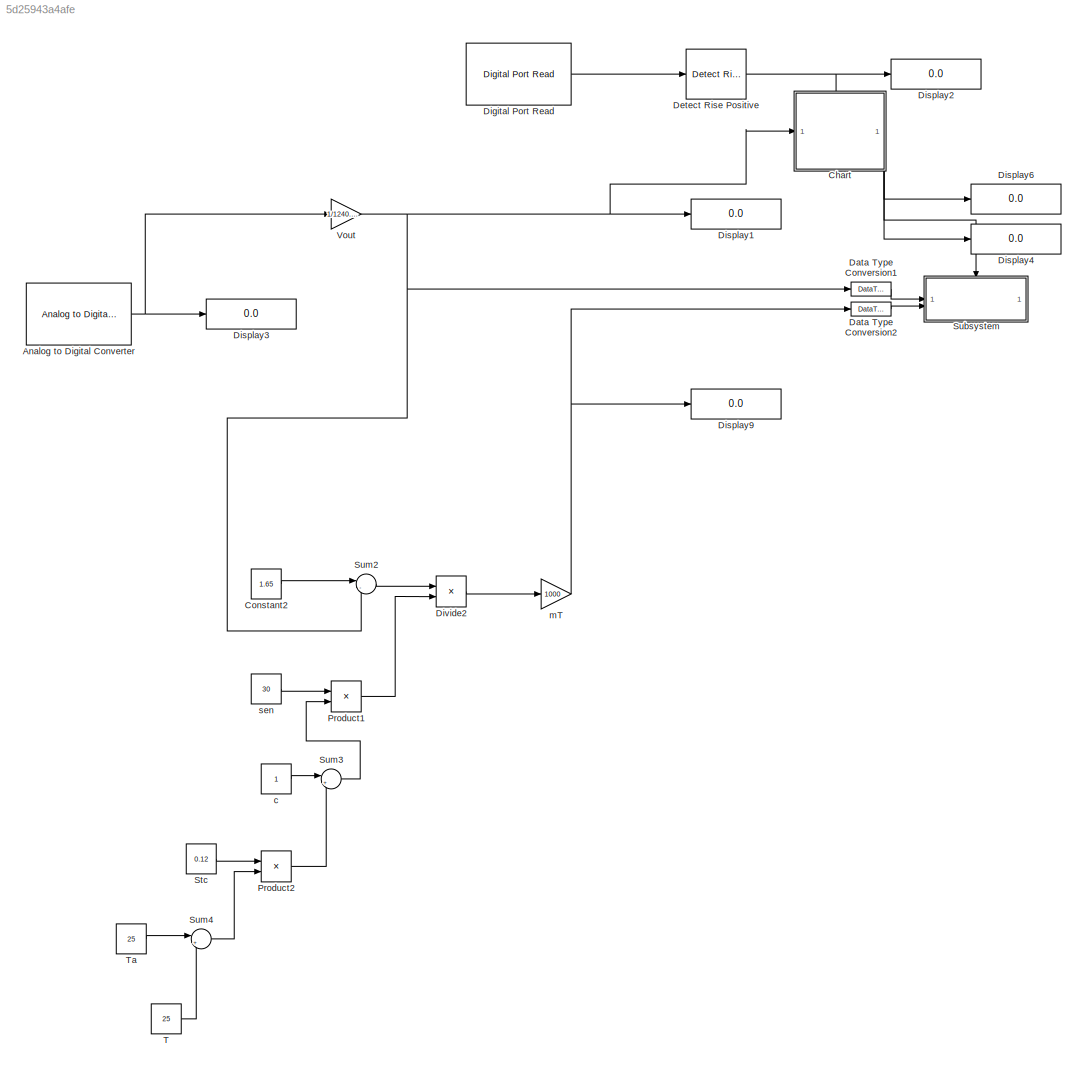
MODEL slx_5d25943a4afe
KIND model
CONFIG AbsTol = auto
CONFIG EnableMultiTasking = on
CONFIG FixedStep = 0.001
CONFIG MaxStep = auto
CONFIG MinStep = auto
CONFIG RelTol = 1e-3
CONFIG SampleTimeConstraint = Unconstrained
CONFIG SolverName = FixedStepAuto
CONFIG StartTime = 0.0
CONFIG StopTime = inf
BLOCK [Reference] Analog to Digital Converter  REF=stm32f4xxblockslib/Analog to Digital Converter
  LibrarySourceBlock = stm32g4xxblockslib/Analog to Digital Converter
  SourceBlock = stm32f4xxblockslib/Analog to Digital Converter
  SourceType = stm32cube.blocks.AnalogInput
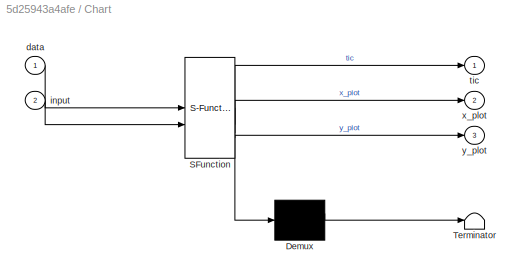
BLOCK [SubSystem] Chart
  ErrorFcn = Stateflow.Translate.translate
  PermitHierarchicalResolution = ExplicitOnly
  PortSchema = {"entries":[{"content":{"sides":[{"content":{"connectorIds":["In1"]},"type":"ConnectorPlacement.EquallySpacedRectSide","uuid":"15421bba-938f-45a9-ad39-0fb1dc31f746"},{"content":{"side":"RIGHT"},"type":"ConnectorPlacement.EquallySpacedRectSide","uuid":"6df644a9-cb47-4d86-919b-b55e97b0d3b9"},{"content":{"connectorIds":["In2"],"side":"TOP"},"type":"ConnectorPlacement.EquallySpacedRectSide","uuid":"9f...<+385ch>
  SFBlockType = Chart
  TreatAsAtomicUnit = on
BLOCK [Demux] Chart/ Demux 
  Outputs = 1
BLOCK [S-Function] Chart/ SFunction 
  EnableBusSupport = on
  FunctionName = sf_sfun
  PortCounts = [2 4]
  SFcnIsStateOwnerBlock = off
  SFunctionDeploymentMode = off
  Tag = Stateflow S-Function 3
BLOCK [Terminator] Chart/ Terminator 
BLOCK [Inport] Chart/data
BLOCK [Inport] Chart/input
  Port = 2
BLOCK [Outport] Chart/tic
BLOCK [Outport] Chart/x_plot
  Port = 2
BLOCK [Outport] Chart/y_plot
  Port = 3
BLOCK [Constant] Constant2
  Value = 1.65
BLOCK [DataTypeConversion] Data Type Conversion1
  OutDataTypeStr = double
  RndMeth = Floor
  SaturateOnIntegerOverflow = off
BLOCK [DataTypeConversion] Data Type Conversion2
  OutDataTypeStr = double
  RndMeth = Floor
  SaturateOnIntegerOverflow = off
BLOCK [Reference] Detect Rise Positive  REF=simulink/Logic and Bit
Operations/Detect Rise
Positive
  SourceBlock = simulink/Logic and Bit\nOperations/Detect Rise\nPositive
  SourceType = Detect Rise Positive
BLOCK [Reference] Digital Port Read  REF=stm32f4xxblockslib/Digital Port Read
  LibrarySourceBlock = stm32g4xxblockslib/Digital Port Read
  SourceBlock = stm32f4xxblockslib/Digital Port Read
  SourceType = stm32cube.blocks.DigitalPortRead
BLOCK [Display] Display1
  Decimation = 1
BLOCK [Display] Display2
  Decimation = 1
BLOCK [Display] Display3
  Decimation = 1
BLOCK [Display] Display4
  Decimation = 1
BLOCK [Display] Display6
  Decimation = 1
BLOCK [Display] Display9
  Decimation = 1
BLOCK [Product] Divide2
  Inputs = */
BLOCK [Product] Product1
BLOCK [Product] Product2
BLOCK [Constant] Stc
  Value = 0.12
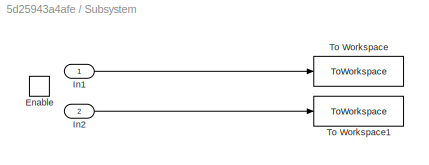
BLOCK [SubSystem] Subsystem
BLOCK [EnablePort] Subsystem/Enable
BLOCK [Inport] Subsystem/In1
BLOCK [Inport] Subsystem/In2
  Port = 2
BLOCK [ToWorkspace] Subsystem/To Workspace
  FixptAsFi = on
  MaxDataPoints = inf
  SampleTime = -1
  Save2DSignal = 2-D array (concatenate along first dimension)
  VariableName = simout1
BLOCK [ToWorkspace] Subsystem/To Workspace1
  FixptAsFi = on
  MaxDataPoints = inf
  SampleTime = -1
  Save2DSignal = 2-D array (concatenate along first dimension)
  VariableName = simout2
BLOCK [Sum] Sum2
  Inputs = |-+
BLOCK [Sum] Sum3
  Inputs = |++
BLOCK [Sum] Sum4
  Inputs = |+-
BLOCK [Constant] T
  Value = 25
BLOCK [Constant] Ta
  Value = 25
BLOCK [Gain] Vout
  Gain = 1/1240.909
BLOCK [Constant] c
BLOCK [Gain] mT
  Gain = 1000
BLOCK [Constant] sen
  Value = 30
NET Analog to Digital Converter:1 -> Display3:1, Vout:1
LINE Chart:1 -> Subsystem:enable
LINE Chart:2 -> Display4:1
LINE Chart:3 -> Display6:1
LINE Constant2:1 -> Sum2:1
LINE Data Type Conversion1:1 -> Subsystem:1
LINE Data Type Conversion2:1 -> Subsystem:2
NET Detect Rise Positive:1 -> Chart:2, Display2:1
LINE Digital Port Read:1 -> Detect Rise Positive:1
LINE Divide2:1 -> mT:1
LINE Product1:1 -> Divide2:2
LINE Product2:1 -> Sum3:2
LINE Stc:1 -> Product2:1
LINE Subsystem/In1:1 -> Subsystem/To Workspace:1
LINE Subsystem/In2:1 -> Subsystem/To Workspace1:1
LINE Sum2:1 -> Divide2:1
LINE Sum3:1 -> Product1:2
LINE Sum4:1 -> Product2:2
LINE T:1 -> Sum4:2
LINE Ta:1 -> Sum4:1
NET Vout:1 -> Chart:1, Data Type Conversion1:1, Display1:1, Sum2:2
LINE c:1 -> Sum3:1
NET mT:1 -> Data Type Conversion2:1, Display9:1
LINE sen:1 -> Product1:1
note: NET lines group one-source signal fan-out (src -> all destinations, sorted); 1:1 wires keep LINE
CHART Chart states=3 transitions=4
  STATE_LABEL 'setup\nloop = 0;\ntic = 0;\nx_plot = 0;\ny_plot = 0;'
  STATE_LABEL 'set\nloop = 0;'
  STATE_LABEL 'loop1\nentry:\ntic = 1;\nduring:\nloop = loop + 0.001;\nexit:\ntic = 0;\nx_plot = x_plot + 2.77778\ny_plot = data'
CHART  states=0 transitions=0
